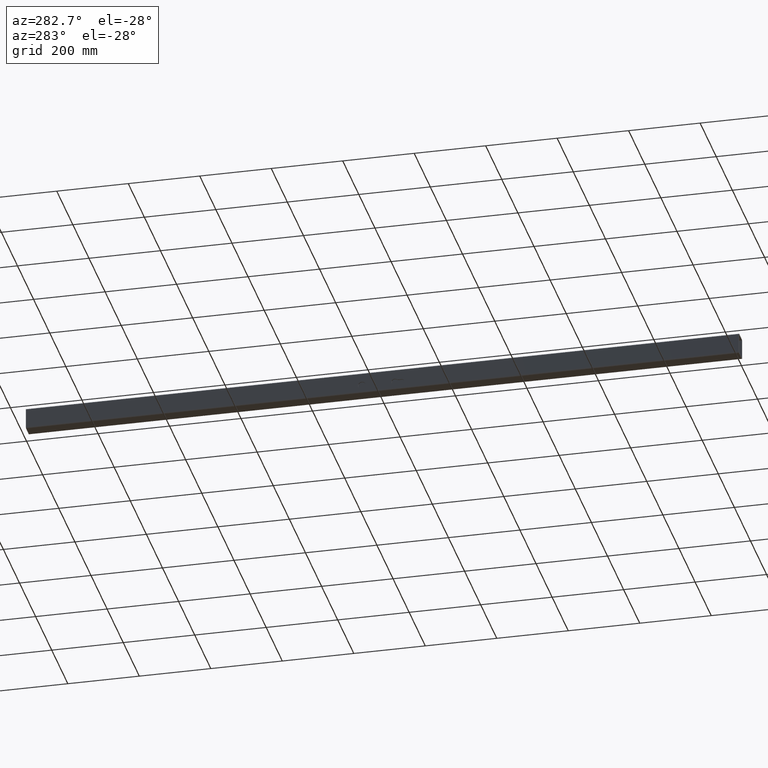
[diagram: clean part render]
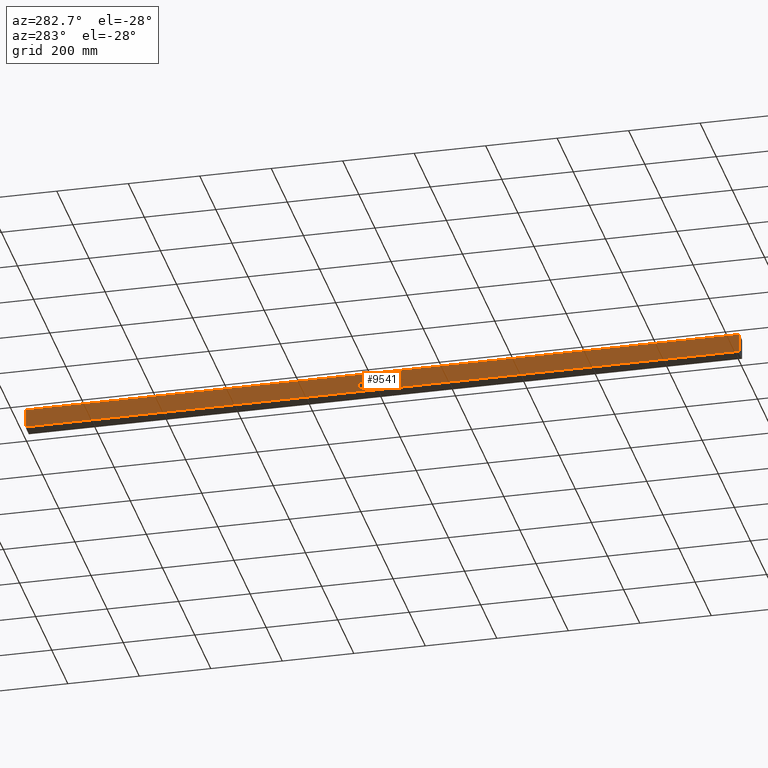
[diagram: same view with one face highlighted and labeled with its STEP entity id]
A machine part, auxiliary view. The second image highlights one B-rep face of the part: STEP entity #9541.
In plain terms, the highlighted planar face has unit normal (1, 0, -0).
Its self-contained STEP definition (entity closure, byte-faithful):
#123 = DIRECTION ( 'NONE',  ( 0.000000000000000000, 0.000000000000000000, -1.000000000000000000 ) ) ;
#217 = VERTEX_POINT ( 'NONE', #8530 ) ;
#372 = LINE ( 'NONE', #7747, #2643 ) ;
#935 = ORIENTED_EDGE ( 'NONE', *, *, #10552, .T. ) ;
#1021 = DIRECTION ( 'NONE',  ( -0.000000000000000000, -1.000000000000000000, -0.000000000000000000 ) ) ;
#1054 = DIRECTION ( 'NONE',  ( 1.000000000000000000, 0.000000000000000000, 0.000000000000000000 ) ) ;
#1133 = VECTOR ( 'NONE', #12186, 1000.000000000000000 ) ;
#1249 = ORIENTED_EDGE ( 'NONE', *, *, #4058, .F. ) ;
#1258 = FACE_BOUND ( 'NONE', #8770, .T. ) ;
#1333 = ORIENTED_EDGE ( 'NONE', *, *, #8920, .T. ) ;
#1734 = LINE ( 'NONE', #7321, #1133 ) ;
#1904 = ORIENTED_EDGE ( 'NONE', *, *, #7947, .T. ) ;
#1975 = PLANE ( 'NONE',  #10028 ) ;
#2072 = ORIENTED_EDGE ( 'NONE', *, *, #8185, .T. ) ;
#2119 = ORIENTED_EDGE ( 'NONE', *, *, #6425, .T. ) ;
#2454 = CIRCLE ( 'NONE', #2628, 5.650000000000002132 ) ;
#2566 = CARTESIAN_POINT ( 'NONE',  ( -20.00000000000000355, 57.50000000000022027, -18.00000000000001066 ) ) ;
#2579 = VECTOR ( 'NONE', #6163, 1000.000000000000000 ) ;
#2628 = AXIS2_PLACEMENT_3D ( 'NONE', #5847, #1054, #123 ) ;
#2643 = VECTOR ( 'NONE', #6802, 1000.000000000000000 ) ;
#2795 = VECTOR ( 'NONE', #6628, 1000.000000000000000 ) ;
#2840 = VERTEX_POINT ( 'NONE', #7865 ) ;
#2994 = CARTESIAN_POINT ( 'NONE',  ( -20.00000000000000355, -997.5000000000000000, -26.00000000000000355 ) ) ;
#3129 = VERTEX_POINT ( 'NONE', #4641 ) ;
#3480 = AXIS2_PLACEMENT_3D ( 'NONE', #6507, #5009, #6015 ) ;
#3555 = CARTESIAN_POINT ( 'NONE',  ( -20.00000000000000355, -41.69722168617840907, -1.850000000000002753 ) ) ;
#3696 = CARTESIAN_POINT ( 'NONE',  ( -20.00000000000000355, -34.49999999999977973, -7.500000000000003553 ) ) ;
#4058 = EDGE_CURVE ( 'NONE', #2840, #6551, #5877, .T. ) ;
#4123 = CARTESIAN_POINT ( 'NONE',  ( -20.00000000000000355, 997.5000000000000000, -26.00000000000000355 ) ) ;
#4216 = AXIS2_PLACEMENT_3D ( 'NONE', #3696, #9756, #10744 ) ;
#4275 = CARTESIAN_POINT ( 'NONE',  ( -20.00000000000000355, -41.69722168617839486, -13.15000000000000213 ) ) ;
#4352 = ORIENTED_EDGE ( 'NONE', *, *, #5447, .T. ) ;
#4462 = CARTESIAN_POINT ( 'NONE',  ( -20.00000000000000355, -997.5000000000000000, -26.00000000000000355 ) ) ;
#4641 = CARTESIAN_POINT ( 'NONE',  ( -20.00000000000000355, -54.69999999999978257, -13.15000000000000568 ) ) ;
#4833 = LINE ( 'NONE', #4462, #12070 ) ;
#5009 = DIRECTION ( 'NONE',  ( 1.000000000000000000, 0.000000000000000000, 0.000000000000000000 ) ) ;
#5411 = VERTEX_POINT ( 'NONE', #3555 ) ;
#5414 = FACE_OUTER_BOUND ( 'NONE', #10732, .T. ) ;
#5447 = EDGE_CURVE ( 'NONE', #9629, #5411, #10148, .T. ) ;
#5517 = EDGE_CURVE ( 'NONE', #11167, #3129, #2454, .T. ) ;
#5812 = EDGE_LOOP ( 'NONE', ( #935 ) ) ;
#5847 = CARTESIAN_POINT ( 'NONE',  ( -20.00000000000000355, -54.69999999999978257, -7.500000000000003553 ) ) ;
#5877 = LINE ( 'NONE', #4123, #2579 ) ;
#5912 = CARTESIAN_POINT ( 'NONE',  ( -20.00000000000000355, 997.5000000000000000, -26.00000000000000355 ) ) ;
#6015 = DIRECTION ( 'NONE',  ( 0.000000000000000000, 0.000000000000000000, -1.000000000000000000 ) ) ;
#6065 = FACE_BOUND ( 'NONE', #5812, .T. ) ;
#6071 = ORIENTED_EDGE ( 'NONE', *, *, #5517, .T. ) ;
#6163 = DIRECTION ( 'NONE',  ( 1.334402673828313339E-16, 0.000000000000000000, 1.000000000000000000 ) ) ;
#6339 = DIRECTION ( 'NONE',  ( 1.334402673828313339E-16, 0.000000000000000000, 1.000000000000000000 ) ) ;
#6425 = EDGE_CURVE ( 'NONE', #2840, #9793, #9031, .T. ) ;
#6507 = CARTESIAN_POINT ( 'NONE',  ( -20.00000000000000355, 57.50000000000022027, -7.500000000000003553 ) ) ;
#6551 = VERTEX_POINT ( 'NONE', #10108 ) ;
#6628 = DIRECTION ( 'NONE',  ( -0.000000000000000000, 1.000000000000000000, 2.668235101928752824E-16 ) ) ;
#6802 = DIRECTION ( 'NONE',  ( -0.000000000000000000, -1.000000000000000000, -0.000000000000000000 ) ) ;
#7321 = CARTESIAN_POINT ( 'NONE',  ( -20.00000000000000355, -54.69999999999978257, -1.850000000000001865 ) ) ;
#7747 = CARTESIAN_POINT ( 'NONE',  ( -19.99999999999999645, 997.5000000000000000, 25.99999999999999645 ) ) ;
#7798 = EDGE_CURVE ( 'NONE', #6551, #217, #372, .T. ) ;
#7865 = CARTESIAN_POINT ( 'NONE',  ( -20.00000000000000355, 997.5000000000000000, -26.00000000000000355 ) ) ;
#7911 = CIRCLE ( 'NONE', #3480, 10.50000000000000533 ) ;
#7947 = EDGE_CURVE ( 'NONE', #5411, #11167, #1734, .T. ) ;
#8185 = EDGE_CURVE ( 'NONE', #9793, #217, #4833, .T. ) ;
#8405 = VECTOR ( 'NONE', #1021, 1000.000000000000000 ) ;
#8530 = CARTESIAN_POINT ( 'NONE',  ( -19.99999999999999645, -997.5000000000000000, 25.99999999999999645 ) ) ;
#8770 = EDGE_LOOP ( 'NONE', ( #1904, #6071, #1333, #4352 ) ) ;
#8824 = LINE ( 'NONE', #10589, #2795 ) ;
#8825 = DIRECTION ( 'NONE',  ( 1.000000000000000000, 0.000000000000000000, -1.334402673828313339E-16 ) ) ;
#8920 = EDGE_CURVE ( 'NONE', #3129, #9629, #8824, .T. ) ;
#9031 = LINE ( 'NONE', #10793, #8405 ) ;
#9541 = ADVANCED_FACE ( 'NONE', ( #1258, #6065, #5414 ), #1975, .F. ) ;
#9629 = VERTEX_POINT ( 'NONE', #4275 ) ;
#9756 = DIRECTION ( 'NONE',  ( 1.000000000000000000, 0.000000000000000000, 0.000000000000000000 ) ) ;
#9784 = DIRECTION ( 'NONE',  ( -1.334402673828313339E-16, 0.000000000000000000, -1.000000000000000000 ) ) ;
#9793 = VERTEX_POINT ( 'NONE', #2994 ) ;
#10028 = AXIS2_PLACEMENT_3D ( 'NONE', #5912, #8825, #9784 ) ;
#10108 = CARTESIAN_POINT ( 'NONE',  ( -19.99999999999999645, 997.5000000000000000, 25.99999999999999645 ) ) ;
#10148 = CIRCLE ( 'NONE', #4216, 9.149999999999998579 ) ;
#10552 = EDGE_CURVE ( 'NONE', #10614, #10614, #7911, .T. ) ;
#10589 = CARTESIAN_POINT ( 'NONE',  ( -20.00000000000000355, -41.69722168617840907, -13.15000000000000213 ) ) ;
#10614 = VERTEX_POINT ( 'NONE', #2566 ) ;
#10732 = EDGE_LOOP ( 'NONE', ( #2072, #11918, #1249, #2119 ) ) ;
#10744 = DIRECTION ( 'NONE',  ( 0.000000000000000000, 0.000000000000000000, -1.000000000000000000 ) ) ;
#10793 = CARTESIAN_POINT ( 'NONE',  ( -20.00000000000000355, 997.5000000000000000, -26.00000000000000355 ) ) ;
#11167 = VERTEX_POINT ( 'NONE', #11765 ) ;
#11765 = CARTESIAN_POINT ( 'NONE',  ( -20.00000000000000355, -54.69999999999978257, -1.850000000000001865 ) ) ;
#11918 = ORIENTED_EDGE ( 'NONE', *, *, #7798, .F. ) ;
#12070 = VECTOR ( 'NONE', #6339, 1000.000000000000000 ) ;
#12186 = DIRECTION ( 'NONE',  ( -0.000000000000000000, -1.000000000000000000, 6.670587754821882060E-17 ) ) ;